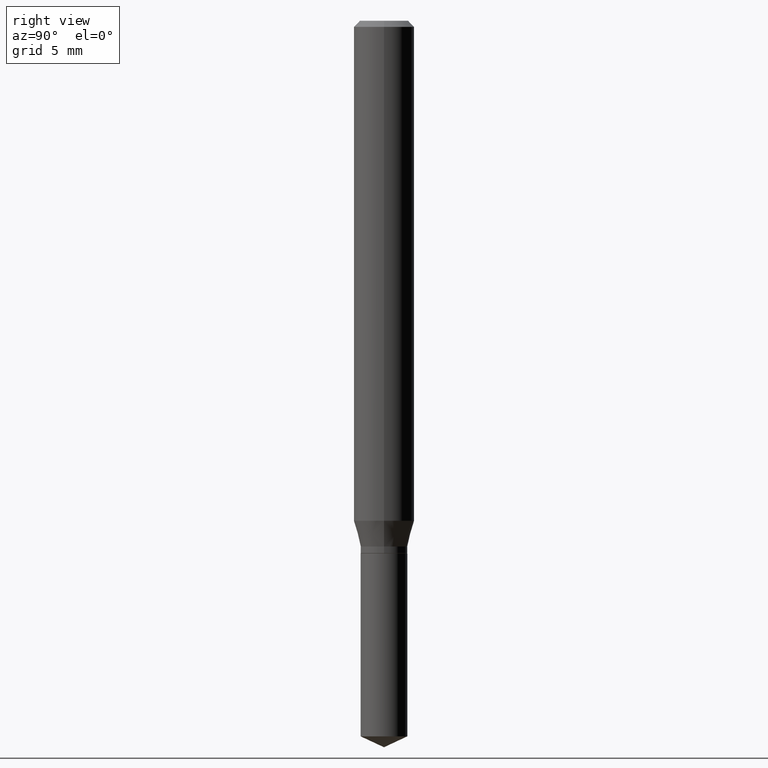
[diagram: clean part render]
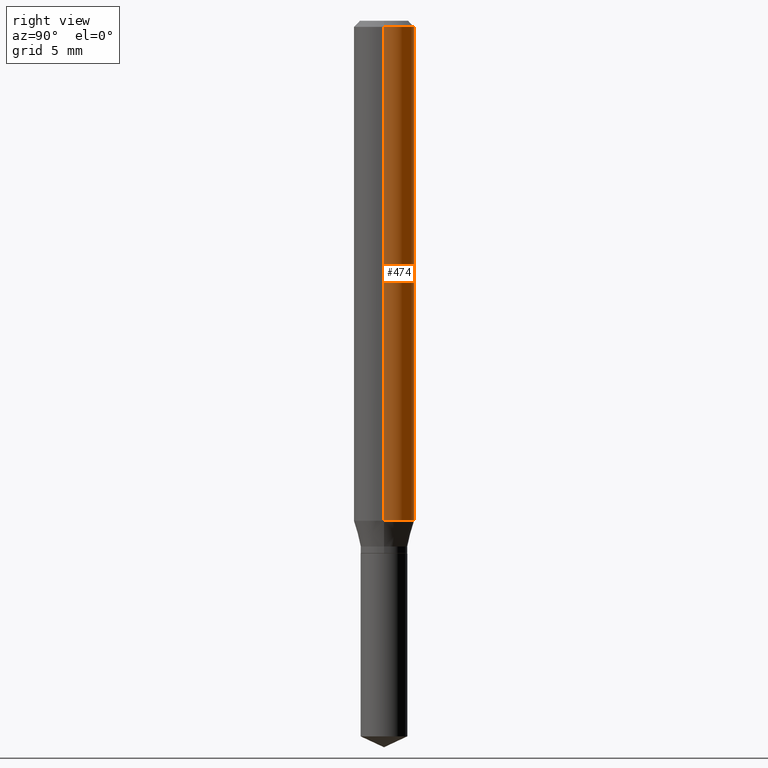
[diagram: same view with one face highlighted and labeled with its STEP entity id]
A machine part, right view. The second image highlights one B-rep face of the part: STEP entity #474.
In plain terms, the highlighted cylindrical surface (edge-blend (fillet) strip) has radius 1.5875 mm, axis along (-0, 0, 1).
Its self-contained STEP definition (entity closure, byte-faithful):
#2 = EDGE_CURVE ( 'NONE', #197, #322, #170, .T. ) ;
#15 = ORIENTED_EDGE ( 'NONE', *, *, #2, .F. ) ;
#17 = CARTESIAN_POINT ( 'NONE',  ( 0.06250000000000012490, -4.040755163728689015E-15, -1.032318275992143430 ) ) ;
#33 = CYLINDRICAL_SURFACE ( 'NONE', #374, 0.06250000000000006939 ) ;
#36 = DIRECTION ( 'NONE',  ( -2.445468806185136597E-29, 3.491481338843145583E-15, 1.000000000000000000 ) ) ;
#37 = CARTESIAN_POINT ( 'NONE',  ( -0.06250000000000012490, -3.160230786523232758E-15, -1.032318275992143430 ) ) ;
#82 = DIRECTION ( 'NONE',  ( -2.445468806185136877E-29, 3.491481338843145188E-15, 1.000000000000000000 ) ) ;
#83 = AXIS2_PLACEMENT_3D ( 'NONE', #308, #377, #413 ) ;
#113 = DIRECTION ( 'NONE',  ( 1.000000000000000000, -6.982962677686266711E-15, 4.876176775795935793E-29 ) ) ;
#130 = EDGE_CURVE ( 'NONE', #347, #322, #437, .T. ) ;
#147 = CARTESIAN_POINT ( 'NONE',  ( 0.06250000000000000000, -4.800786840909313294E-16, -0.01250000000000008916 ) ) ;
#149 = CARTESIAN_POINT ( 'NONE',  ( 0.000000000000000000, 0.000000000000000000, 0.000000000000000000 ) ) ;
#164 = CARTESIAN_POINT ( 'NONE',  ( 3.056836007731442729E-31, -4.364351673553962300E-17, -0.01250000000000008916 ) ) ;
#170 = CIRCLE ( 'NONE', #440, 0.06250000000000000000 ) ;
#195 = ORIENTED_EDGE ( 'NONE', *, *, #130, .T. ) ;
#197 = VERTEX_POINT ( 'NONE', #147 ) ;
#211 = FACE_OUTER_BOUND ( 'NONE', #314, .T. ) ;
#249 = CARTESIAN_POINT ( 'NONE',  ( -0.06250000000000006939, 4.440892098500631092E-16, -3.074334431409319267E-30 ) ) ;
#253 = CARTESIAN_POINT ( 'NONE',  ( -0.06250000000000000000, -1.379892546704354260E-15, -0.01250000000000008916 ) ) ;
#259 = EDGE_CURVE ( 'NONE', #460, #197, #329, .T. ) ;
#275 = DIRECTION ( 'NONE',  ( 1.000000000000000000, -6.982962677686266711E-15, 0.000000000000000000 ) ) ;
#308 = CARTESIAN_POINT ( 'NONE',  ( 2.524502141993605107E-29, -3.604319996373296557E-15, -1.032318275992143430 ) ) ;
#313 = DIRECTION ( 'NONE',  ( -2.445468806185136597E-29, 3.491481338843145583E-15, 1.000000000000000000 ) ) ;
#314 = EDGE_LOOP ( 'NONE', ( #461, #195, #15, #389 ) ) ;
#322 = VERTEX_POINT ( 'NONE', #253 ) ;
#329 = LINE ( 'NONE', #450, #393 ) ;
#337 = VECTOR ( 'NONE', #397, 39.37007874015748143 ) ;
#347 = VERTEX_POINT ( 'NONE', #37 ) ;
#374 = AXIS2_PLACEMENT_3D ( 'NONE', #149, #36, #113 ) ;
#377 = DIRECTION ( 'NONE',  ( -2.445468806185136597E-29, 3.491481338843145583E-15, 1.000000000000000000 ) ) ;
#380 = EDGE_CURVE ( 'NONE', #460, #347, #422, .T. ) ;
#389 = ORIENTED_EDGE ( 'NONE', *, *, #259, .F. ) ;
#393 = VECTOR ( 'NONE', #82, 39.37007874015748143 ) ;
#397 = DIRECTION ( 'NONE',  ( -2.445468806185136877E-29, 3.491481338843145188E-15, 1.000000000000000000 ) ) ;
#413 = DIRECTION ( 'NONE',  ( 1.000000000000000000, -6.982962677686264344E-15, 0.000000000000000000 ) ) ;
#422 = CIRCLE ( 'NONE', #83, 0.06250000000000012490 ) ;
#437 = LINE ( 'NONE', #249, #337 ) ;
#440 = AXIS2_PLACEMENT_3D ( 'NONE', #164, #313, #275 ) ;
#450 = CARTESIAN_POINT ( 'NONE',  ( 0.06250000000000006939, -4.364351673553921624E-16, 3.047610484872463374E-30 ) ) ;
#460 = VERTEX_POINT ( 'NONE', #17 ) ;
#461 = ORIENTED_EDGE ( 'NONE', *, *, #380, .T. ) ;
#474 = ADVANCED_FACE ( 'NONE', ( #211 ), #33, .T. ) ;